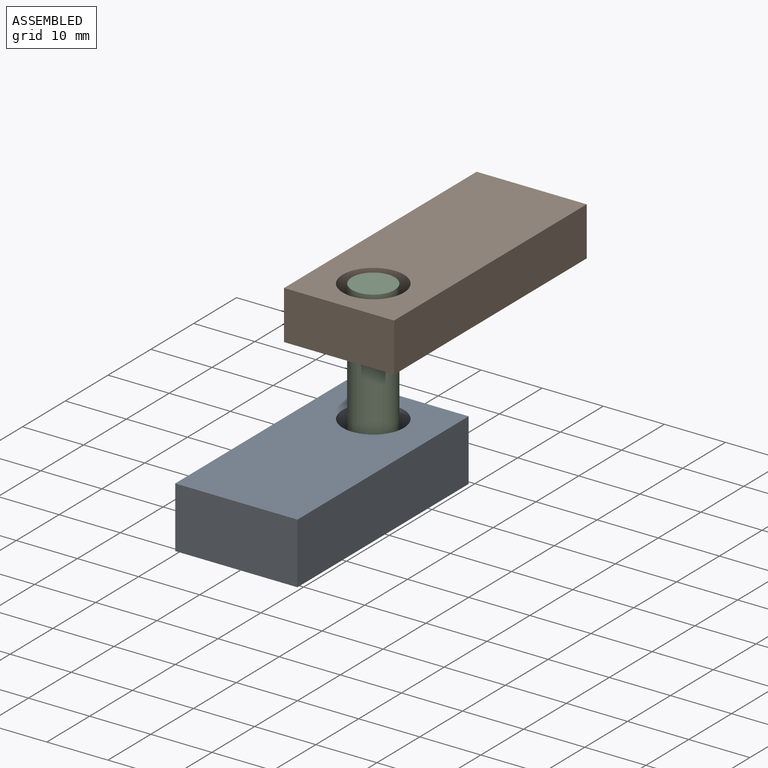
[diagram: assembled view]
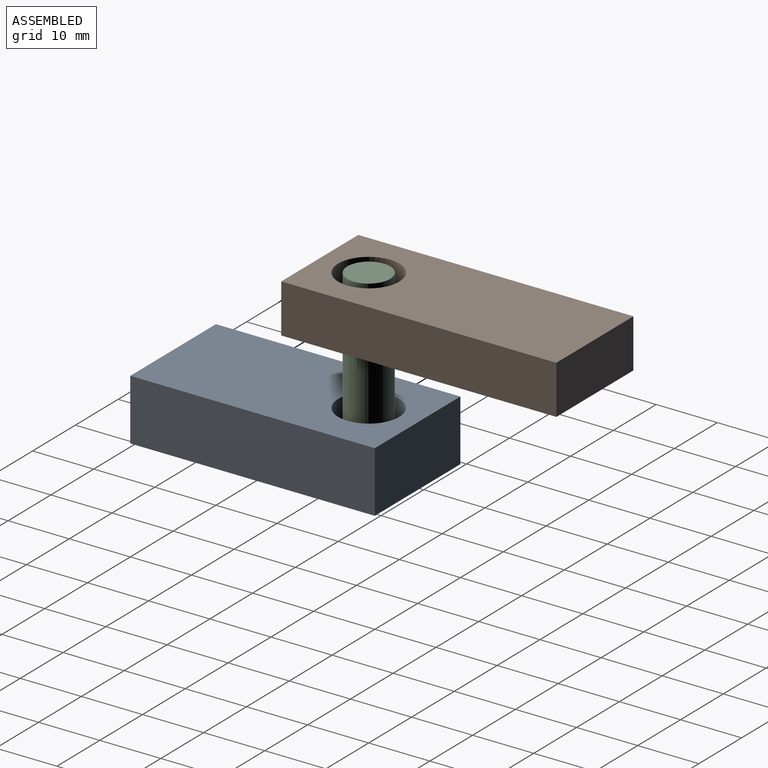
[diagram: assembled view, second angle]
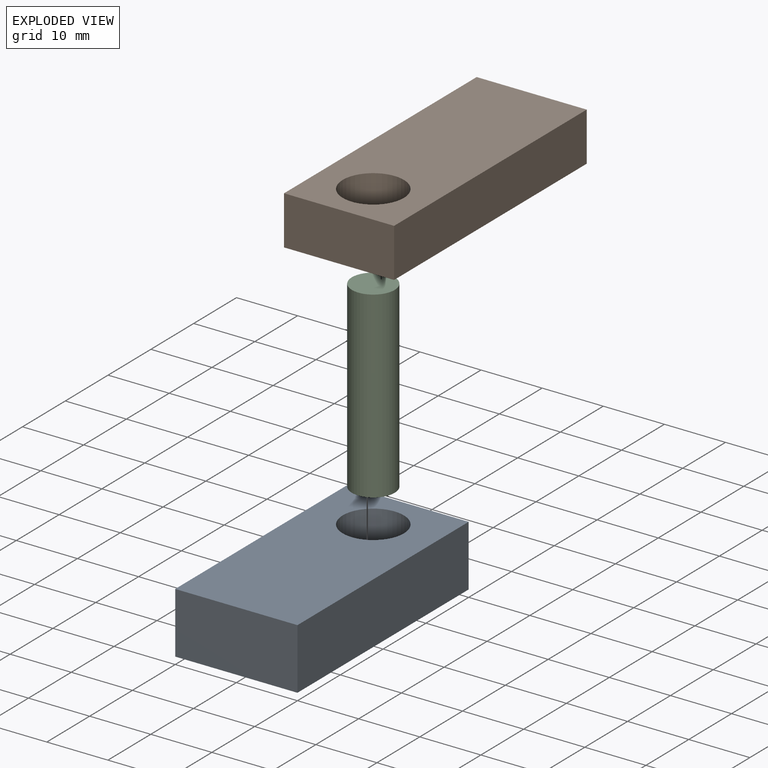
[diagram: exploded view]
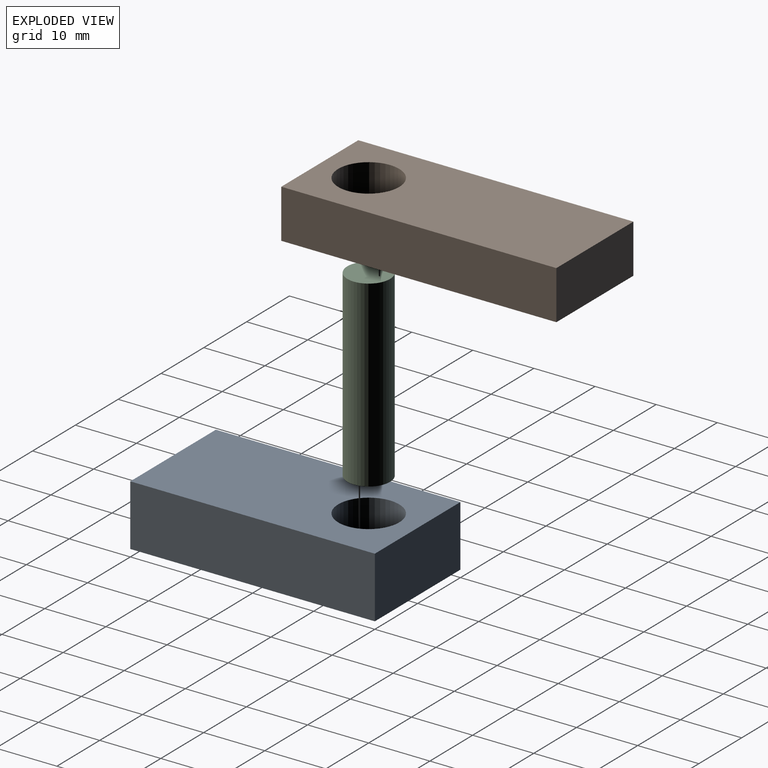
[diagram: exploded view, second angle]
ASSEMBLY  parts=3 mates=2
PART A: 7 faces, bbox 20x40x10 mm
  f0: plane 20x10mm, normal (0,1,0), area 200mm2, adj f1,f4,f5,f6
  f1: plane 40x10mm, normal (-1,0,0), area 400mm2, adj f0,f2,f5,f6
  f2: plane 20x10mm, normal (0,-1,0), area 200mm2, adj f1,f4,f5,f6
  f3: cylinder r=5mm len=10mm, axis (0,0,-1), area 314.2mm2, adj f5,f6
  f4: plane 40x10mm, normal (1,0,0), area 400mm2, adj f0,f2,f5,f6
  f5: plane 40x20mm, normal (0,0,1), area 721.5mm2, adj f0,f1,f2,f3,f4
  f6: plane 40x20mm, normal (0,0,-1), area 721.5mm2, adj f0,f1,f2,f3,f4
PART B: 7 faces, bbox 18x45x8 mm
  f0: plane 18x8mm, normal (0,1,0), area 144mm2, adj f1,f4,f5,f6
  f1: plane 45x8mm, normal (-1,0,0), area 360mm2, adj f0,f2,f5,f6
  f2: plane 18x8mm, normal (0,-1,0), area 144mm2, adj f1,f4,f5,f6
  f3: cylinder r=5mm len=10mm, axis (0,0,-1), area 251.3mm2, adj f5,f6
  f4: plane 45x8mm, normal (1,0,0), area 360mm2, adj f0,f2,f5,f6
  f5: plane 45x18mm, normal (0,0,1), area 731.5mm2, adj f0,f1,f2,f3,f4
  f6: plane 45x18mm, normal (0,0,-1), area 731.5mm2, adj f0,f1,f2,f3,f4
PART C: 3 faces, bbox 7x7x30 mm
  f0: cylinder r=3.5mm len=30mm, axis (0,0,-1), area 659.7mm2, adj f1,f2
  f1: plane 7x7mm, normal (0,0,1), area 38.5mm2, adj f0
  f2: plane 7x7mm, normal (0,0,-1), area 38.5mm2, adj f0
PLACE A t=(2,-3.01,0)mm
PLACE B t=(37.4,53.84,22)mm
PLACE C t=(64.62,20.73,0)mm
MATE revolute B.f3 <-> C.f0  axis (0,0,1) through (10,32,30)mm
MATE revolute A.f3 <-> C.f0  axis (0,0,-1) through (10,32,0)mm
